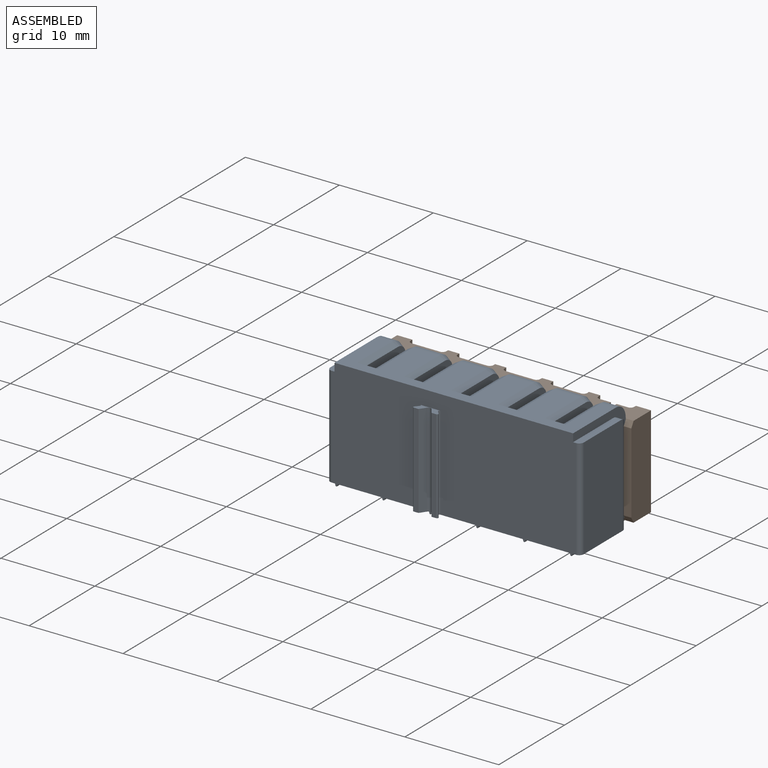
[diagram: assembled view]
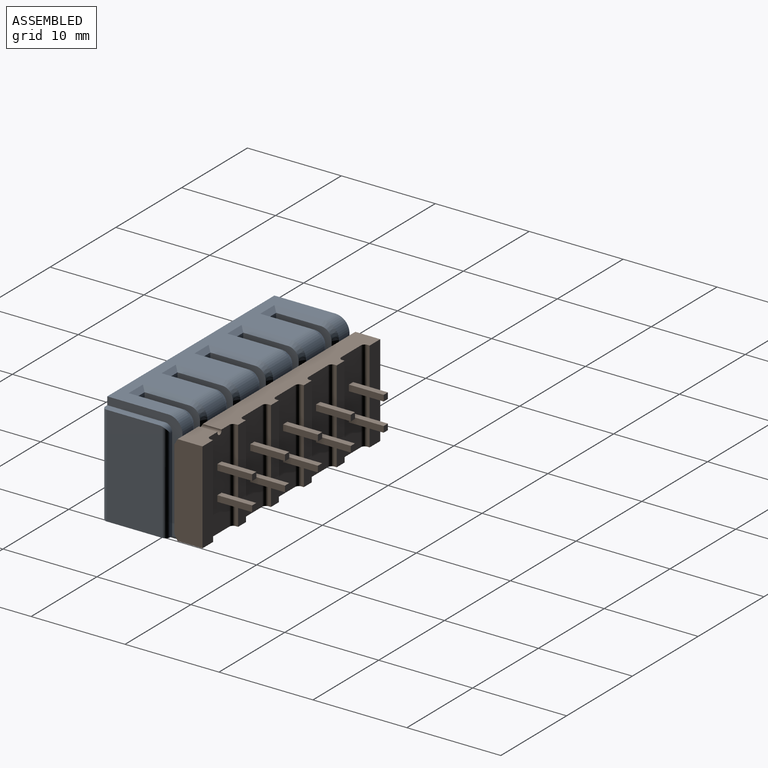
[diagram: assembled view, second angle]
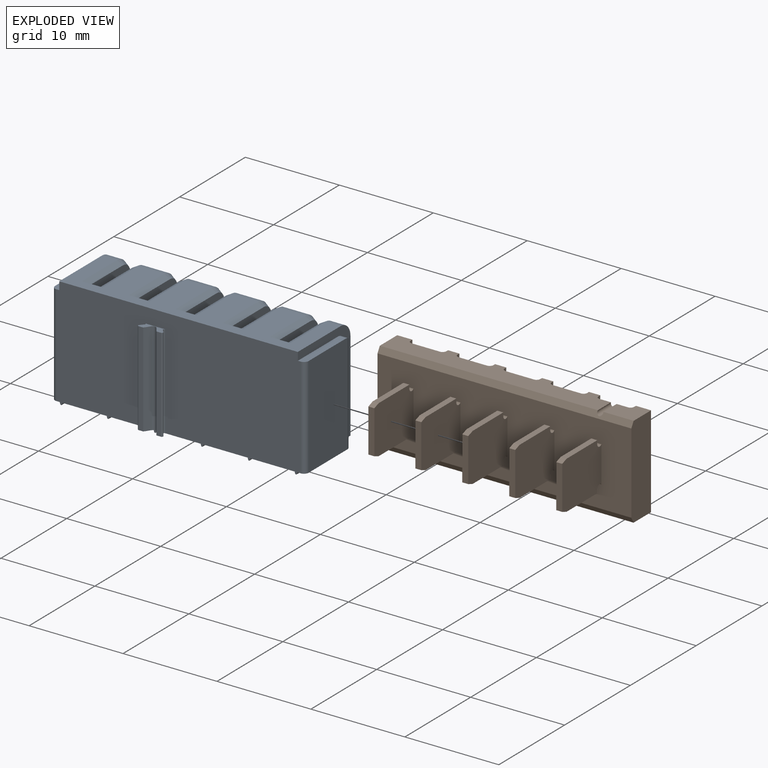
[diagram: exploded view]
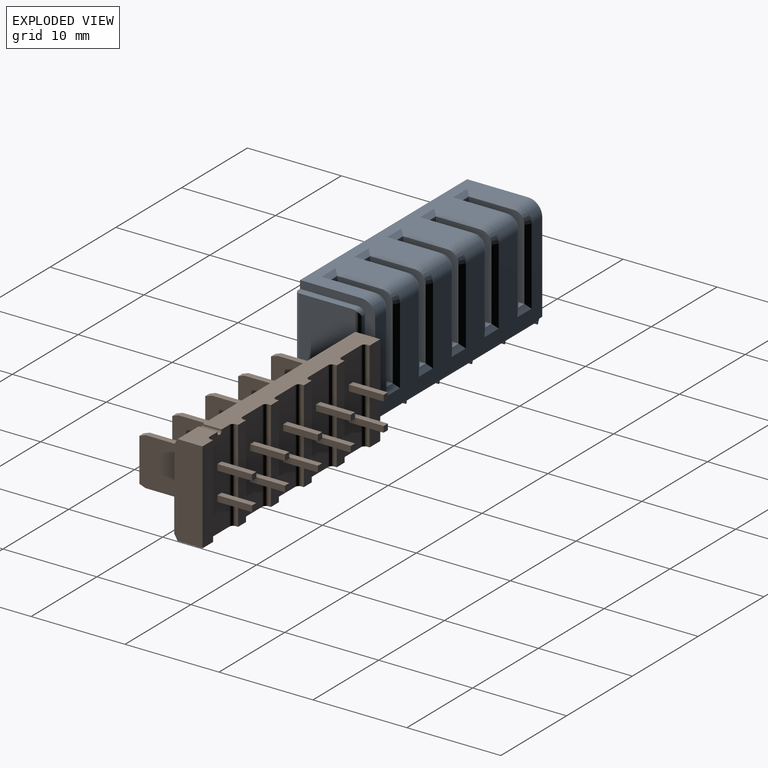
[diagram: exploded view, second angle]
ASSEMBLY  parts=2 mates=2
PART A: 169 faces, bbox 27x8.8x13 mm
  f0: plane 25.4x6.5mm, normal (0,0,1), area 107.2mm2, adj f1,f5,f7,f8,f20,f52,f59,f62
  f1: plane 5.36x0.61mm, normal (-0.5,0,0.87), area 3.5mm2, adj f0,f2,f79,f168
  f2: plane 8.75x5.9mm, normal (-1,0,0), area 51.3mm2, adj f1,f3,f78,f79,f88
  f3: plane 8.75x0.95mm, normal (0,1,0), area 8.3mm2, adj f2,f4,f88,f168
  f4: plane 8.75x5.9mm, normal (1,0,0), area 51.3mm2, adj f3,f5,f6,f88,f90
  f5: plane 5.36x0.61mm, normal (0.5,0,0.87), area 3.5mm2, adj f0,f4,f6,f168
  f6: cone r=1.33mm half-angle=30deg, axis (-1,0,0), area 1.5mm2, adj f4,f5,f7,f90
  f7: cylinder r=1.5mm len=1.62mm, axis (-1,0,0), area 3.8mm2, adj f0,f6,f8,f77
  f8: plane 11.6x8mm, normal (-1,0,0), area 18.1mm2, adj f0,f7,f9,f10,f17,f20,f23,f77
  f9: plane 6.15x0.8mm, normal (0,0,1), area 4.9mm2, adj f8,f10,f11,f12,f20
  f10: cylinder r=0.75mm len=0.8mm, axis (-1,0,0), area 0.7mm2, adj f8,f9,f11,f131,f132
  f11: plane 10.75x5.9mm, normal (-1,0,0), area 63.4mm2, adj f9,f10,f12,f17,f132
  f12: cylinder r=0.5mm len=10.75mm, axis (0,0,-1), area 8.4mm2, adj f9,f11,f17,f20
  f13: plane 9.71x8.42mm, normal (0,0,-1), area 72.4mm2, adj f19,f20,f21,f23,f25,f34,f39,f119
  f14: plane 7.62x4.71mm, normal (0,0,-1), area 35.6mm2, adj f20,f23,f27,f40,f136,f142,f158,f162
  f15: plane 7.62x4.71mm, normal (0,0,-1), area 35.6mm2, adj f20,f23,f37,f46,f133,f138,f139,f144
  f16: plane 7.62x4.71mm, normal (0,0,-1), area 35.6mm2, adj f20,f23,f42,f49,f137,f143,f163,f167
  f17: plane 7.62x0.86mm, normal (0,0,-1), area 5.8mm2, adj f8,f11,f12,f20,f23,f44,f131,f132
  f18: plane 7.62x0.86mm, normal (0,0,-1), area 5.8mm2, adj f20,f23,f51,f52,f53,f55,f56,f57
  f19: plane 0.29x0.25mm, normal (0,-1,0), area 0.1mm2, adj f13,f21,f34,f35
  f20: plane 26x11.85mm, normal (0,-1,0), area 279.7mm2, adj f0,f8,f9,f12,f13,f14,f15,f16
  f21: plane 7.64x0.18mm, normal (0.97,0,-0.26), area 1.4mm2, adj f13,f19,f22,f29,f35
  f22: plane 0.29x0.02mm, normal (0,0,1), area 0mm2, adj f21,f23,f29,f34
  f23: plane 25.4x0.5mm, normal (0,0.97,-0.26), area 13.1mm2, adj f8,f13,f14,f15,f16,f17,f18,f22
  f24: plane 0.29x0.02mm, normal (0,0,1), area 0mm2, adj f23,f25,f27,f28
  f25: plane 7.64x0.18mm, normal (-0.97,0,-0.26), area 1.4mm2, adj f13,f20,f24,f26,f28
  f26: cylinder r=0.1mm len=7.64mm, axis (0,-1,0), area 2mm2, adj f20,f25,f27,f28
  f27: plane 7.64x0.18mm, normal (0.97,0,-0.26), area 1.4mm2, adj f14,f20,f24,f26,f28
  f28: plane 0.29x0.25mm, normal (0,1,0), area 0.1mm2, adj f24,f25,f26,f27
  f29: plane 0.29x0.25mm, normal (0,1,0), area 0.1mm2, adj f21,f22,f34,f35
  f30: plane 0.29x0.25mm, normal (0,1,0), area 0.1mm2, adj f36,f37,f38,f39
  f31: plane 0.29x0.25mm, normal (0,1,0), area 0.1mm2, adj f40,f41,f42,f43
  f32: plane 0.29x0.25mm, normal (0,1,0), area 0.1mm2, adj f44,f45,f46,f47
  f33: plane 0.29x0.25mm, normal (0,1,0), area 0.1mm2, adj f48,f49,f50,f51
  f34: plane 7.64x0.18mm, normal (-0.97,0,-0.26), area 1.4mm2, adj f13,f19,f22,f29,f35
  f35: cylinder r=0.1mm len=7.64mm, axis (0,-1,0), area 2mm2, adj f19,f21,f29,f34
  f36: plane 0.29x0.02mm, normal (0,0,1), area 0mm2, adj f23,f30,f37,f39
  f37: plane 7.64x0.18mm, normal (-0.97,0,-0.26), area 1.4mm2, adj f15,f20,f30,f36,f38
  f38: cylinder r=0.1mm len=7.64mm, axis (0,-1,0), area 2mm2, adj f20,f30,f37,f39
  f39: plane 7.64x0.18mm, normal (0.97,0,-0.26), area 1.4mm2, adj f13,f20,f30,f36,f38
  f40: plane 7.64x0.18mm, normal (-0.97,0,-0.26), area 1.4mm2, adj f14,f20,f31,f41,f43
  f41: cylinder r=0.1mm len=7.64mm, axis (0,-1,0), area 2mm2, adj f20,f31,f40,f42
  f42: plane 7.64x0.18mm, normal (0.97,0,-0.26), area 1.4mm2, adj f16,f20,f31,f41,f43
  f43: plane 0.29x0.02mm, normal (0,0,1), area 0mm2, adj f23,f31,f40,f42
  f44: plane 7.64x0.18mm, normal (-0.97,0,-0.26), area 1.4mm2, adj f17,f20,f32,f45,f47
  f45: cylinder r=0.1mm len=7.64mm, axis (0,-1,0), area 2mm2, adj f20,f32,f44,f46
  f46: plane 7.64x0.18mm, normal (0.97,0,-0.26), area 1.4mm2, adj f15,f20,f32,f45,f47
  f47: plane 0.29x0.02mm, normal (0,0,1), area 0mm2, adj f23,f32,f44,f46
  f48: plane 0.29x0.02mm, normal (0,0,1), area 0mm2, adj f23,f33,f49,f51
  f49: plane 7.64x0.18mm, normal (-0.97,0,-0.26), area 1.4mm2, adj f16,f20,f33,f48,f50
  f50: cylinder r=0.1mm len=7.64mm, axis (0,-1,0), area 2mm2, adj f20,f33,f49,f51
  f51: plane 7.64x0.18mm, normal (0.97,0,-0.26), area 1.4mm2, adj f18,f20,f33,f48,f50
  f52: plane 11.6x8mm, normal (1,0,0), area 18.1mm2, adj f0,f18,f20,f23,f53,f54,f58,f59
  f53: plane 10x0.3mm, normal (0,1,0), area 3mm2, adj f18,f52,f54,f56
  f54: cylinder r=0.75mm len=0.8mm, axis (1,0,0), area 0.7mm2, adj f52,f53,f55,f56,f58
  f55: plane 10.75x5.9mm, normal (1,0,0), area 63.4mm2, adj f18,f54,f56,f57,f58
  f56: cylinder r=0.5mm len=10.71mm, axis (0,0,1), area 8.1mm2, adj f18,f53,f54,f55
  f57: cylinder r=0.5mm len=10.75mm, axis (0,0,-1), area 8.4mm2, adj f18,f20,f55,f58
  f58: plane 6.15x0.8mm, normal (0,0,1), area 4.9mm2, adj f20,f52,f54,f55,f57
  f59: cylinder r=1.5mm len=1.62mm, axis (-1,0,0), area 3.8mm2, adj f0,f52,f60,f77
  f60: cone r=1.33mm half-angle=30deg, axis (1,0,0), area 1.5mm2, adj f59,f61,f62,f115
  f61: plane 8.75x5.9mm, normal (-1,0,0), area 51.3mm2, adj f60,f62,f64,f113,f115
  f62: plane 5.36x0.61mm, normal (-0.5,0,0.87), area 3.5mm2, adj f0,f60,f61,f63
  f63: plane 2.16x0.61mm, normal (0,0.5,0.87), area 1.1mm2, adj f0,f62,f64,f66
  f64: plane 8.75x0.95mm, normal (0,1,0), area 8.3mm2, adj f61,f63,f65,f113
  f65: plane 8.75x5.9mm, normal (1,0,0), area 51.3mm2, adj f64,f66,f67,f113,f116
  f66: plane 5.36x0.61mm, normal (0.5,0,0.87), area 3.5mm2, adj f0,f63,f65,f67
  f67: cone r=1.33mm half-angle=30deg, axis (-1,0,0), area 1.5mm2, adj f65,f66,f68,f116
  f68: cylinder r=1.5mm len=2.84mm, axis (-1,0,0), area 6.7mm2, adj f0,f67,f69,f77
  f69: cone r=1.33mm half-angle=30deg, axis (1,0,0), area 1.5mm2, adj f68,f70,f71,f112
  f70: plane 8.75x5.9mm, normal (-1,0,0), area 51.3mm2, adj f69,f71,f110,f112,f117
  f71: plane 5.36x0.61mm, normal (-0.5,0,0.87), area 3.5mm2, adj f0,f69,f70,f72
  f72: plane 2.16x0.61mm, normal (0,0.5,0.87), area 1.1mm2, adj f0,f71,f73,f117
  f73: plane 5.36x0.61mm, normal (0.5,0,0.87), area 3.5mm2, adj f0,f72,f74,f75
  f74: cone r=1.33mm half-angle=30deg, axis (-1,0,0), area 1.5mm2, adj f73,f75,f76,f108
  f75: plane 8.75x5.9mm, normal (1,0,0), area 51.3mm2, adj f73,f74,f76,f110,f117
  f76: plane 8.21x0.61mm, normal (0.5,0.87,0), area 5.5mm2, adj f74,f75,f77,f111
  f77: plane 25.4x9.6mm, normal (0,1,0), area 155.1mm2, adj f7,f8,f52,f59,f68,f76,f78,f80
  f78: plane 8.21x0.61mm, normal (-0.5,0.87,0), area 5.5mm2, adj f2,f77,f79,f89
  f79: cone r=1.33mm half-angle=30deg, axis (1,0,0), area 1.5mm2, adj f1,f2,f78,f80
  f80: cylinder r=1.5mm len=2.84mm, axis (-1,0,0), area 6.7mm2, adj f0,f77,f79,f81
  f81: cone r=1.33mm half-angle=30deg, axis (-1,0,0), area 1.5mm2, adj f80,f82,f83,f109
  f82: plane 8.75x5.9mm, normal (1,0,0), area 51.3mm2, adj f81,f83,f87,f91,f109
  f83: plane 5.36x0.61mm, normal (0.5,0,0.87), area 3.5mm2, adj f0,f81,f82,f84
  f84: plane 2.16x0.61mm, normal (0,0.5,0.87), area 1.1mm2, adj f0,f83,f85,f87
  f85: plane 5.36x0.61mm, normal (-0.5,0,0.87), area 3.5mm2, adj f0,f84,f86,f94
  f86: plane 8.75x5.9mm, normal (-1,0,0), area 51.3mm2, adj f85,f87,f91,f93,f94
  f87: plane 8.75x0.95mm, normal (0,1,0), area 8.3mm2, adj f82,f84,f86,f91
  f88: plane 5.9x0.95mm, normal (0,0,1), area 5.6mm2, adj f2,f3,f4,f89
  f89: plane 2.16x0.61mm, normal (0,0.87,0.5), area 1.1mm2, adj f77,f78,f88,f90
  f90: plane 8.21x0.61mm, normal (0.5,0.87,0), area 5.5mm2, adj f4,f6,f77,f89
  f91: plane 5.9x0.95mm, normal (0,0,1), area 5.6mm2, adj f82,f86,f87,f92
  f92: plane 2.16x0.61mm, normal (0,0.87,0.5), area 1.1mm2, adj f77,f91,f93,f109
  f93: plane 8.21x0.61mm, normal (-0.5,0.87,0), area 5.5mm2, adj f77,f86,f92,f94
  f94: cone r=1.33mm half-angle=30deg, axis (1,0,0), area 1.5mm2, adj f85,f86,f93,f95
  f95: cylinder r=1.5mm len=2.84mm, axis (-1,0,0), area 6.7mm2, adj f0,f77,f94,f96
  f96: cone r=1.33mm half-angle=30deg, axis (-1,0,0), area 1.5mm2, adj f95,f97,f98,f107
  f97: plane 8.75x5.9mm, normal (1,0,0), area 51.3mm2, adj f96,f98,f100,f106,f107
  f98: plane 5.36x0.61mm, normal (0.5,0,0.87), area 3.5mm2, adj f0,f96,f97,f99
  f99: plane 2.16x0.61mm, normal (0,0.5,0.87), area 1.1mm2, adj f0,f98,f100,f102
  f100: plane 8.75x0.95mm, normal (0,1,0), area 8.3mm2, adj f97,f99,f101,f106
  f101: plane 8.75x5.9mm, normal (-1,0,0), area 51.3mm2, adj f100,f102,f103,f104,f106
  f102: plane 5.36x0.61mm, normal (-0.5,0,0.87), area 3.5mm2, adj f0,f99,f101,f103
  f103: cone r=1.33mm half-angle=30deg, axis (1,0,0), area 1.5mm2, adj f101,f102,f104,f108
  f104: plane 8.21x0.61mm, normal (-0.5,0.87,0), area 5.5mm2, adj f77,f101,f103,f105
  f105: plane 2.16x0.61mm, normal (0,0.87,0.5), area 1.1mm2, adj f77,f104,f106,f107
  f106: plane 5.9x0.95mm, normal (0,0,1), area 5.6mm2, adj f97,f100,f101,f105
  f107: plane 8.21x0.61mm, normal (0.5,0.87,0), area 5.5mm2, adj f77,f96,f97,f105
  f108: cylinder r=1.5mm len=2.84mm, axis (-1,0,0), area 6.7mm2, adj f0,f74,f77,f103
  f109: plane 8.21x0.61mm, normal (0.5,0.87,0), area 5.5mm2, adj f77,f81,f82,f92
  f110: plane 5.9x0.95mm, normal (0,0,1), area 5.6mm2, adj f70,f75,f111,f117
  f111: plane 2.16x0.61mm, normal (0,0.87,0.5), area 1.1mm2, adj f76,f77,f110,f112
  f112: plane 8.21x0.61mm, normal (-0.5,0.87,0), area 5.5mm2, adj f69,f70,f77,f111
  f113: plane 5.9x0.95mm, normal (0,0,1), area 5.6mm2, adj f61,f64,f65,f114
  f114: plane 2.16x0.61mm, normal (0,0.87,0.5), area 1.1mm2, adj f77,f113,f115,f116
  f115: plane 8.21x0.61mm, normal (-0.5,0.87,0), area 5.5mm2, adj f60,f61,f77,f114
  f116: plane 8.21x0.61mm, normal (0.5,0.87,0), area 5.5mm2, adj f65,f67,f77,f114
  f117: plane 8.75x0.95mm, normal (0,1,0), area 8.3mm2, adj f70,f72,f75,f110
  f118: plane 25.4x0.25mm, normal (0,0,-1), area 6.4mm2, adj f8,f23,f52,f77
  f119: cylinder r=0.13mm len=10mm, axis (0,0,1), area 2.9mm2, adj f13,f20,f120,f130
  f120: plane 10x0.37mm, normal (0.77,0.64,0), area 4.9mm2, adj f13,f119,f121,f130
  f121: cylinder r=0.13mm len=10mm, axis (0,0,1), area 2.9mm2, adj f13,f120,f122,f130
  f122: plane 10x0.5mm, normal (0,-1,0), area 5mm2, adj f13,f121,f123,f130
  f123: plane 10x0.64mm, normal (-0.82,-0.57,0), area 7.8mm2, adj f13,f122,f124,f130
  f124: cylinder r=0.3mm len=10mm, axis (0,0,1), area 5.8mm2, adj f13,f123,f125,f130
  f125: plane 10x0.64mm, normal (0.82,-0.57,0), area 7.8mm2, adj f13,f124,f126,f130
  f126: plane 10x0.5mm, normal (0,-1,0), area 5mm2, adj f13,f125,f127,f130
  f127: cylinder r=0.13mm len=10mm, axis (0,0,1), area 2.9mm2, adj f13,f126,f128,f130
  f128: plane 10x0.37mm, normal (-0.77,0.64,0), area 4.9mm2, adj f13,f127,f129,f130
  f129: cylinder r=0.13mm len=10mm, axis (0,0,1), area 2.9mm2, adj f13,f20,f128,f130
  f130: plane 2.65x0.8mm, normal (0,0,1), area 1.2mm2, adj f20,f119,f120,f121,f122,f123,f124,f125
  f131: plane 10x0.3mm, normal (0,1,0), area 3mm2, adj f8,f10,f17,f132
  f132: cylinder r=0.5mm len=10.71mm, axis (0,0,-1), area 8.1mm2, adj f10,f11,f17,f131
  f133: plane 1.4x1.34mm, normal (0,-1,0), area 1.8mm2, adj f15,f138,f144,f145,f146,f147
  f134: plane 1.4x1.34mm, normal (0,-1,0), area 1.8mm2, adj f13,f148,f149,f150,f151,f152
  f135: plane 1.4x1.34mm, normal (0,-1,0), area 1.8mm2, adj f13,f153,f154,f155,f156,f157
  f136: plane 1.4x1.34mm, normal (0,-1,0), area 1.8mm2, adj f14,f158,f159,f160,f161,f162
  f137: plane 1.4x1.34mm, normal (0,-1,0), area 1.8mm2, adj f16,f163,f164,f165,f166,f167
  f138: plane 0.98x0.22mm, normal (1,0,0), area 0.2mm2, adj f15,f133,f139,f147
  f139: plane 1.4x1.34mm, normal (0,1,0), area 1.8mm2, adj f15,f138,f144,f145,f146,f147
  f140: plane 1.4x1.34mm, normal (0,1,0), area 1.8mm2, adj f13,f148,f149,f150,f151,f152
  f141: plane 1.4x1.34mm, normal (0,1,0), area 1.8mm2, adj f13,f153,f154,f155,f156,f157
  f142: plane 1.4x1.34mm, normal (0,1,0), area 1.8mm2, adj f14,f158,f159,f160,f161,f162
  f143: plane 1.4x1.34mm, normal (0,1,0), area 1.8mm2, adj f16,f163,f164,f165,f166,f167
  f144: plane 0.98x0.22mm, normal (-1,0,0), area 0.2mm2, adj f15,f133,f139,f145
  f145: plane 0.42x0.25mm, normal (-0.87,0,-0.5), area 0.1mm2, adj f133,f139,f144,f146
  f146: plane 0.85x0.22mm, normal (0,0,-1), area 0.2mm2, adj f133,f139,f145,f147
  f147: plane 0.42x0.25mm, normal (0.87,0,-0.5), area 0.1mm2, adj f133,f138,f139,f146
  f148: plane 0.98x0.22mm, normal (-1,0,0), area 0.2mm2, adj f13,f134,f140,f149
  f149: plane 0.42x0.25mm, normal (-0.87,0,-0.5), area 0.1mm2, adj f134,f140,f148,f150
  f150: plane 0.85x0.22mm, normal (0,0,-1), area 0.2mm2, adj f134,f140,f149,f151
  f151: plane 0.42x0.25mm, normal (0.87,0,-0.5), area 0.1mm2, adj f134,f140,f150,f152
  f152: plane 0.98x0.22mm, normal (1,0,0), area 0.2mm2, adj f13,f134,f140,f151
  f153: plane 0.98x0.22mm, normal (-1,0,0), area 0.2mm2, adj f13,f135,f141,f154
  f154: plane 0.42x0.25mm, normal (-0.87,0,-0.5), area 0.1mm2, adj f135,f141,f153,f155
  f155: plane 0.85x0.22mm, normal (0,0,-1), area 0.2mm2, adj f135,f141,f154,f156
  f156: plane 0.42x0.25mm, normal (0.87,0,-0.5), area 0.1mm2, adj f135,f141,f155,f157
  f157: plane 0.98x0.22mm, normal (1,0,0), area 0.2mm2, adj f13,f135,f141,f156
  f158: plane 0.98x0.22mm, normal (-1,0,0), area 0.2mm2, adj f14,f136,f142,f159
  f159: plane 0.42x0.25mm, normal (-0.87,0,-0.5), area 0.1mm2, adj f136,f142,f158,f160
  f160: plane 0.85x0.22mm, normal (0,0,-1), area 0.2mm2, adj f136,f142,f159,f161
  f161: plane 0.42x0.25mm, normal (0.87,0,-0.5), area 0.1mm2, adj f136,f142,f160,f162
  f162: plane 0.98x0.22mm, normal (1,0,0), area 0.2mm2, adj f14,f136,f142,f161
  f163: plane 0.98x0.22mm, normal (-1,0,0), area 0.2mm2, adj f16,f137,f143,f164
  f164: plane 0.42x0.25mm, normal (-0.87,0,-0.5), area 0.1mm2, adj f137,f143,f163,f165
  f165: plane 0.85x0.22mm, normal (0,0,-1), area 0.2mm2, adj f137,f143,f164,f166
  f166: plane 0.42x0.25mm, normal (0.87,0,-0.5), area 0.1mm2, adj f137,f143,f165,f167
  f167: plane 0.98x0.22mm, normal (1,0,0), area 0.2mm2, adj f16,f137,f143,f166
  f168: plane 2.16x0.61mm, normal (0,0.5,0.87), area 1.1mm2, adj f0,f1,f3,f5
PART B: 145 faces, bbox 27.5x10.3x12.5 mm
  f0: plane 9.8x3mm, normal (-1,0,0), area 29.2mm2, adj f1,f6,f10,f15,f18,f19
  f1: plane 27.48x1.07mm, normal (0,0.5,0.87), area 18.7mm2, adj f0,f2,f9,f10,f17,f19
  f2: cylinder r=0.31mm len=2mm, axis (0,0,1), area 2.3mm2, adj f1,f3,f9,f10
  f3: plane 9.8x3mm, normal (0,0,-1), area 28.4mm2, adj f2,f4,f6,f9,f10,f91,f135,f136
  f4: cylinder r=0.4mm len=9.8mm, axis (0,-1,0), area 6.2mm2, adj f3,f5,f6,f9
  f5: plane 9.8x0.25mm, normal (-1,0,0), area 2.5mm2, adj f4,f6,f9,f11
  f6: plane 27.02x2.65mm, normal (0,-1,0), area 59.6mm2, adj f0,f3,f4,f5,f7,f8,f11,f12
  f7: plane 9.8x3mm, normal (0,0,-1), area 28.6mm2, adj f6,f8,f10,f123,f125,f126,f127,f128
  f8: cylinder r=0.4mm len=9.8mm, axis (0,-1,0), area 6.2mm2, adj f6,f7,f10,f124
  f9: plane 3.21x2.65mm, normal (0,1,0), area 7.5mm2, adj f1,f2,f3,f4,f5,f11,f17
  f10: plane 23.21x2.65mm, normal (0,1,0), area 50.9mm2, adj f0,f1,f2,f3,f7,f8,f12,f13
  f11: plane 9.8x1.61mm, normal (0,0,-1), area 15.8mm2, adj f5,f6,f9,f17
  f12: plane 9.8x1.2mm, normal (0,0,-1), area 11.8mm2, adj f6,f10,f75,f90
  f13: plane 9.8x1.2mm, normal (0,0,-1), area 11.8mm2, adj f6,f10,f79,f92
  f14: plane 9.8x1.2mm, normal (0,0,-1), area 11.8mm2, adj f6,f10,f96,f107
  f15: plane 9.8x1.61mm, normal (0,0,-1), area 15.8mm2, adj f0,f6,f10,f122
  f16: plane 9.8x1.2mm, normal (0,0,-1), area 11.8mm2, adj f6,f10,f111,f124
  f17: plane 9.8x3mm, normal (1,0,0), area 29.2mm2, adj f1,f6,f9,f11,f18,f19
  f18: plane 27.02x0.61mm, normal (0,-0.5,0.87), area 18.9mm2, adj f0,f6,f17,f19
  f19: plane 27.02x8.59mm, normal (0,0,1), area 219.8mm2, adj f0,f1,f17,f18,f20,f21,f22,f23
  f20: plane 5.95x5.1mm, normal (1,0,0), area 29.3mm2, adj f19,f21,f23,f24,f25,f26,f27,f28
  f21: cylinder r=0.35mm len=0.64mm, axis (1,0,0), area 0.5mm2, adj f19,f20,f22,f30
  f22: plane 5.95x5.1mm, normal (-1,0,0), area 29.3mm2, adj f19,f21,f23,f24,f25,f26,f27,f28
  f23: cylinder r=0.35mm len=0.64mm, axis (1,0,0), area 0.5mm2, adj f19,f20,f22,f24
  f24: plane 0.64x0.4mm, normal (0,0,-1), area 0.3mm2, adj f20,f22,f23,f25
  f25: plane 4.67x0.64mm, normal (0,1,0), area 3mm2, adj f20,f22,f24,f26
  f26: plane 0.66x0.64mm, normal (0,0.94,0.34), area 0.4mm2, adj f20,f22,f25,f27
  f27: plane 4.62x0.64mm, normal (0,0,1), area 2.9mm2, adj f20,f22,f26,f28
  f28: plane 0.66x0.64mm, normal (0,-0.94,0.34), area 0.4mm2, adj f20,f22,f27,f29
  f29: plane 4.67x0.64mm, normal (0,-1,0), area 3mm2, adj f20,f22,f28,f30
  f30: plane 0.64x0.4mm, normal (0,0,-1), area 0.3mm2, adj f20,f21,f22,f29
  f31: plane 5.95x5.1mm, normal (1,0,0), area 29.3mm2, adj f19,f32,f33,f34,f35,f36,f37,f38
  f32: cylinder r=0.35mm len=0.64mm, axis (1,0,0), area 0.5mm2, adj f19,f31,f33,f41
  f33: plane 0.64x0.4mm, normal (0,0,-1), area 0.3mm2, adj f31,f32,f34,f41
  f34: plane 4.67x0.64mm, normal (0,1,0), area 3mm2, adj f31,f33,f35,f41
  f35: plane 0.66x0.64mm, normal (0,0.94,0.34), area 0.4mm2, adj f31,f34,f36,f41
  f36: plane 4.62x0.64mm, normal (0,0,1), area 2.9mm2, adj f31,f35,f37,f41
  f37: plane 0.66x0.64mm, normal (0,-0.94,0.34), area 0.4mm2, adj f31,f36,f38,f41
  f38: plane 4.67x0.64mm, normal (0,-1,0), area 3mm2, adj f31,f37,f39,f41
  f39: plane 0.64x0.4mm, normal (0,0,-1), area 0.3mm2, adj f31,f38,f40,f41
  f40: cylinder r=0.35mm len=0.64mm, axis (1,0,0), area 0.5mm2, adj f19,f31,f39,f41
  f41: plane 5.95x5.1mm, normal (-1,0,0), area 29.3mm2, adj f19,f32,f33,f34,f35,f36,f37,f38
  f42: plane 5.95x5.1mm, normal (1,0,0), area 29.3mm2, adj f19,f43,f44,f45,f46,f47,f48,f49
  f43: cylinder r=0.35mm len=0.64mm, axis (1,0,0), area 0.5mm2, adj f19,f42,f44,f52
  f44: plane 0.64x0.4mm, normal (0,0,-1), area 0.3mm2, adj f42,f43,f45,f52
  f45: plane 4.67x0.64mm, normal (0,1,0), area 3mm2, adj f42,f44,f46,f52
  f46: plane 0.66x0.64mm, normal (0,0.94,0.34), area 0.4mm2, adj f42,f45,f47,f52
  f47: plane 4.62x0.64mm, normal (0,0,1), area 2.9mm2, adj f42,f46,f48,f52
  f48: plane 0.66x0.64mm, normal (0,-0.94,0.34), area 0.4mm2, adj f42,f47,f49,f52
  f49: plane 4.67x0.64mm, normal (0,-1,0), area 3mm2, adj f42,f48,f50,f52
  f50: plane 0.64x0.4mm, normal (0,0,-1), area 0.3mm2, adj f42,f49,f51,f52
  f51: cylinder r=0.35mm len=0.64mm, axis (1,0,0), area 0.5mm2, adj f19,f42,f50,f52
  f52: plane 5.95x5.1mm, normal (-1,0,0), area 29.3mm2, adj f19,f43,f44,f45,f46,f47,f48,f49
  f53: plane 5.95x5.1mm, normal (1,0,0), area 29.3mm2, adj f19,f54,f55,f56,f57,f58,f59,f60
  f54: cylinder r=0.35mm len=0.64mm, axis (1,0,0), area 0.5mm2, adj f19,f53,f55,f63
  f55: plane 0.64x0.4mm, normal (0,0,-1), area 0.3mm2, adj f53,f54,f56,f63
  f56: plane 4.67x0.64mm, normal (0,1,0), area 3mm2, adj f53,f55,f57,f63
  f57: plane 0.66x0.64mm, normal (0,0.94,0.34), area 0.4mm2, adj f53,f56,f58,f63
  f58: plane 4.62x0.64mm, normal (0,0,1), area 2.9mm2, adj f53,f57,f59,f63
  f59: plane 0.66x0.64mm, normal (0,-0.94,0.34), area 0.4mm2, adj f53,f58,f60,f63
  f60: plane 4.67x0.64mm, normal (0,-1,0), area 3mm2, adj f53,f59,f61,f63
  f61: plane 0.64x0.4mm, normal (0,0,-1), area 0.3mm2, adj f53,f60,f62,f63
  f62: cylinder r=0.35mm len=0.64mm, axis (1,0,0), area 0.5mm2, adj f19,f53,f61,f63
  f63: plane 5.95x5.1mm, normal (-1,0,0), area 29.3mm2, adj f19,f54,f55,f56,f57,f58,f59,f60
  f64: plane 5.95x5.1mm, normal (1,0,0), area 29.3mm2, adj f19,f65,f66,f67,f68,f69,f70,f71
  f65: cylinder r=0.35mm len=0.64mm, axis (1,0,0), area 0.5mm2, adj f19,f64,f66,f74
  f66: plane 0.64x0.4mm, normal (0,0,-1), area 0.3mm2, adj f64,f65,f67,f74
  f67: plane 4.67x0.64mm, normal (0,1,0), area 3mm2, adj f64,f66,f68,f74
  f68: plane 0.66x0.64mm, normal (0,0.94,0.34), area 0.4mm2, adj f64,f67,f69,f74
  f69: plane 4.62x0.64mm, normal (0,0,1), area 2.9mm2, adj f64,f68,f70,f74
  f70: plane 0.66x0.64mm, normal (0,-0.94,0.34), area 0.4mm2, adj f64,f69,f71,f74
  f71: plane 4.67x0.64mm, normal (0,-1,0), area 3mm2, adj f64,f70,f72,f74
  f72: plane 0.64x0.4mm, normal (0,0,-1), area 0.3mm2, adj f64,f71,f73,f74
  f73: cylinder r=0.35mm len=0.64mm, axis (1,0,0), area 0.5mm2, adj f19,f64,f72,f74
  f74: plane 5.95x5.1mm, normal (-1,0,0), area 29.3mm2, adj f19,f65,f66,f67,f68,f69,f70,f71
  f75: plane 9.8x0.25mm, normal (-1,0,0), area 2.5mm2, adj f6,f10,f12,f76
  f76: cylinder r=0.4mm len=9.8mm, axis (0,-1,0), area 6.2mm2, adj f6,f10,f75,f77
  f77: plane 9.8x3mm, normal (0,0,-1), area 28.6mm2, adj f6,f10,f76,f78,f80,f81,f82,f83
  f78: cylinder r=0.4mm len=9.8mm, axis (0,-1,0), area 6.2mm2, adj f6,f10,f77,f79
  f79: plane 9.8x0.25mm, normal (1,0,0), area 2.5mm2, adj f6,f10,f13,f78
  f80: plane 3.7x0.64mm, normal (-1,0,0), area 2.4mm2, adj f77,f81,f83,f84
  f81: plane 3.7x0.64mm, normal (0,-1,0), area 2.3mm2, adj f77,f80,f82,f84
  f82: plane 3.7x0.64mm, normal (1,0,0), area 2.4mm2, adj f77,f81,f83,f84
  f83: plane 3.7x0.64mm, normal (0,1,0), area 2.3mm2, adj f77,f80,f82,f84
  f84: plane 0.64x0.64mm, normal (0,0,-1), area 0.4mm2, adj f80,f81,f82,f83
  f85: plane 0.64x0.64mm, normal (0,0,-1), area 0.4mm2, adj f86,f87,f88,f89
  f86: plane 3.7x0.64mm, normal (-1,0,0), area 2.4mm2, adj f77,f85,f87,f89
  f87: plane 3.7x0.64mm, normal (0,-1,0), area 2.3mm2, adj f77,f85,f86,f88
  f88: plane 3.7x0.64mm, normal (1,0,0), area 2.4mm2, adj f77,f85,f87,f89
  f89: plane 3.7x0.64mm, normal (0,1,0), area 2.3mm2, adj f77,f85,f86,f88
  f90: plane 9.8x0.25mm, normal (1,0,0), area 2.5mm2, adj f6,f10,f12,f91
  f91: cylinder r=0.4mm len=9.8mm, axis (0,-1,0), area 6.2mm2, adj f3,f6,f10,f90
  f92: plane 9.8x0.25mm, normal (-1,0,0), area 2.5mm2, adj f6,f10,f13,f93
  f93: cylinder r=0.4mm len=9.8mm, axis (0,-1,0), area 6.2mm2, adj f6,f10,f92,f94
  f94: plane 9.8x3mm, normal (0,0,-1), area 28.6mm2, adj f6,f10,f93,f95,f97,f98,f99,f100
  f95: cylinder r=0.4mm len=9.8mm, axis (0,-1,0), area 6.2mm2, adj f6,f10,f94,f96
  f96: plane 9.8x0.25mm, normal (1,0,0), area 2.5mm2, adj f6,f10,f14,f95
  f97: plane 3.7x0.64mm, normal (-1,0,0), area 2.4mm2, adj f94,f98,f100,f101
  f98: plane 3.7x0.64mm, normal (0,-1,0), area 2.3mm2, adj f94,f97,f99,f101
  f99: plane 3.7x0.64mm, normal (1,0,0), area 2.4mm2, adj f94,f98,f100,f101
  f100: plane 3.7x0.64mm, normal (0,1,0), area 2.3mm2, adj f94,f97,f99,f101
  f101: plane 0.64x0.64mm, normal (0,0,-1), area 0.4mm2, adj f97,f98,f99,f100
  f102: plane 0.64x0.64mm, normal (0,0,-1), area 0.4mm2, adj f103,f104,f105,f106
  f103: plane 3.7x0.64mm, normal (-1,0,0), area 2.4mm2, adj f94,f102,f104,f106
  f104: plane 3.7x0.64mm, normal (0,-1,0), area 2.3mm2, adj f94,f102,f103,f105
  f105: plane 3.7x0.64mm, normal (1,0,0), area 2.4mm2, adj f94,f102,f104,f106
  f106: plane 3.7x0.64mm, normal (0,1,0), area 2.3mm2, adj f94,f102,f103,f105
  f107: plane 9.8x0.25mm, normal (-1,0,0), area 2.5mm2, adj f6,f10,f14,f108
  f108: cylinder r=0.4mm len=9.8mm, axis (0,-1,0), area 6.2mm2, adj f6,f10,f107,f109
  f109: plane 9.8x3mm, normal (0,0,-1), area 28.6mm2, adj f6,f10,f108,f110,f112,f113,f114,f115
  f110: cylinder r=0.4mm len=9.8mm, axis (0,-1,0), area 6.2mm2, adj f6,f10,f109,f111
  f111: plane 9.8x0.25mm, normal (1,0,0), area 2.5mm2, adj f6,f10,f16,f110
  f112: plane 3.7x0.64mm, normal (-1,0,0), area 2.4mm2, adj f109,f113,f115,f116
  f113: plane 3.7x0.64mm, normal (0,-1,0), area 2.3mm2, adj f109,f112,f114,f116
  f114: plane 3.7x0.64mm, normal (1,0,0), area 2.4mm2, adj f109,f113,f115,f116
  f115: plane 3.7x0.64mm, normal (0,1,0), area 2.3mm2, adj f109,f112,f114,f116
  f116: plane 0.64x0.64mm, normal (0,0,-1), area 0.4mm2, adj f112,f113,f114,f115
  f117: plane 0.64x0.64mm, normal (0,0,-1), area 0.4mm2, adj f118,f119,f120,f121
  f118: plane 3.7x0.64mm, normal (-1,0,0), area 2.4mm2, adj f109,f117,f119,f121
  f119: plane 3.7x0.64mm, normal (0,-1,0), area 2.3mm2, adj f109,f117,f118,f120
  f120: plane 3.7x0.64mm, normal (1,0,0), area 2.4mm2, adj f109,f117,f119,f121
  f121: plane 3.7x0.64mm, normal (0,1,0), area 2.3mm2, adj f109,f117,f118,f120
  f122: plane 9.8x0.25mm, normal (1,0,0), area 2.5mm2, adj f6,f10,f15,f123
  f123: cylinder r=0.4mm len=9.8mm, axis (0,-1,0), area 6.2mm2, adj f6,f7,f10,f122
  f124: plane 9.8x0.25mm, normal (-1,0,0), area 2.5mm2, adj f6,f8,f10,f16
  f125: plane 3.7x0.64mm, normal (-1,0,0), area 2.4mm2, adj f7,f126,f128,f129
  f126: plane 3.7x0.64mm, normal (0,-1,0), area 2.3mm2, adj f7,f125,f127,f129
  f127: plane 3.7x0.64mm, normal (1,0,0), area 2.4mm2, adj f7,f126,f128,f129
  f128: plane 3.7x0.64mm, normal (0,1,0), area 2.3mm2, adj f7,f125,f127,f129
  f129: plane 0.64x0.64mm, normal (0,0,-1), area 0.4mm2, adj f125,f126,f127,f128
  f130: plane 0.64x0.64mm, normal (0,0,-1), area 0.4mm2, adj f131,f132,f133,f134
  f131: plane 3.7x0.64mm, normal (-1,0,0), area 2.4mm2, adj f7,f130,f132,f134
  f132: plane 3.7x0.64mm, normal (0,-1,0), area 2.3mm2, adj f7,f130,f131,f133
  f133: plane 3.7x0.64mm, normal (1,0,0), area 2.4mm2, adj f7,f130,f132,f134
  f134: plane 3.7x0.64mm, normal (0,1,0), area 2.3mm2, adj f7,f130,f131,f133
  f135: plane 3.7x0.64mm, normal (-1,0,0), area 2.4mm2, adj f3,f136,f138,f139
  f136: plane 3.7x0.64mm, normal (0,-1,0), area 2.3mm2, adj f3,f135,f137,f139
  f137: plane 3.7x0.64mm, normal (1,0,0), area 2.4mm2, adj f3,f136,f138,f139
  f138: plane 3.7x0.64mm, normal (0,1,0), area 2.3mm2, adj f3,f135,f137,f139
  f139: plane 0.64x0.64mm, normal (0,0,-1), area 0.4mm2, adj f135,f136,f137,f138
  f140: plane 0.64x0.64mm, normal (0,0,-1), area 0.4mm2, adj f141,f142,f143,f144
  f141: plane 3.7x0.64mm, normal (-1,0,0), area 2.4mm2, adj f3,f140,f142,f144
  f142: plane 3.7x0.64mm, normal (0,-1,0), area 2.3mm2, adj f3,f140,f141,f143
  f143: plane 3.7x0.64mm, normal (1,0,0), area 2.4mm2, adj f3,f140,f142,f144
  f144: plane 3.7x0.64mm, normal (0,1,0), area 2.3mm2, adj f3,f140,f141,f143
PLACE A at identity fixed
PLACE B rot(axis=(1,0,0),90deg) t=(0,3.7,-6.55)mm
MATE parallel B.f27 <-> A.f64  axis (0,1,0) through (10,-2.25,-6.55)mm
MATE planar A.f113 <-> B.f29  axis (0,0,1) through (10,0.7,-9.1)mm
